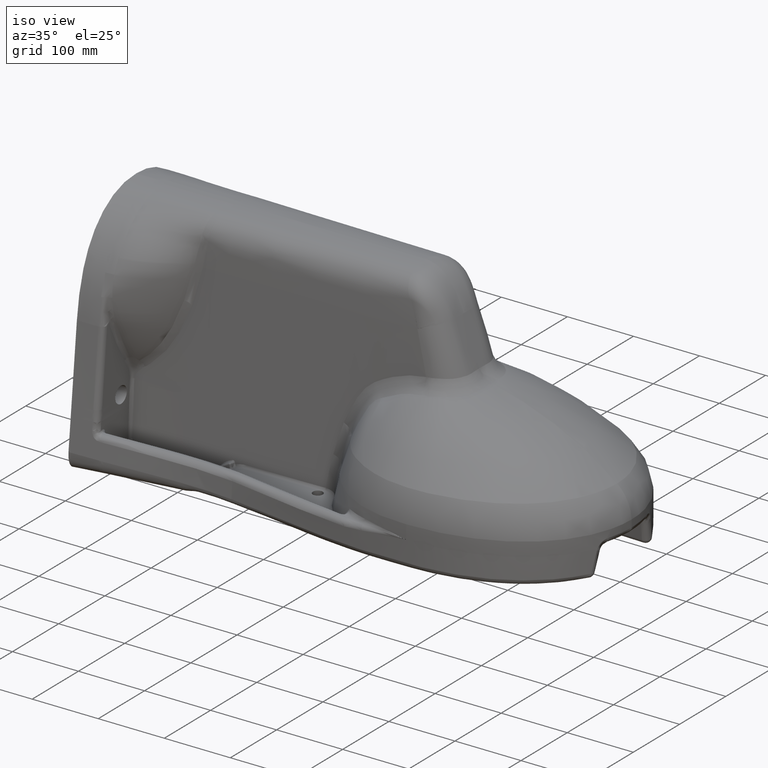
[diagram: clean part render]
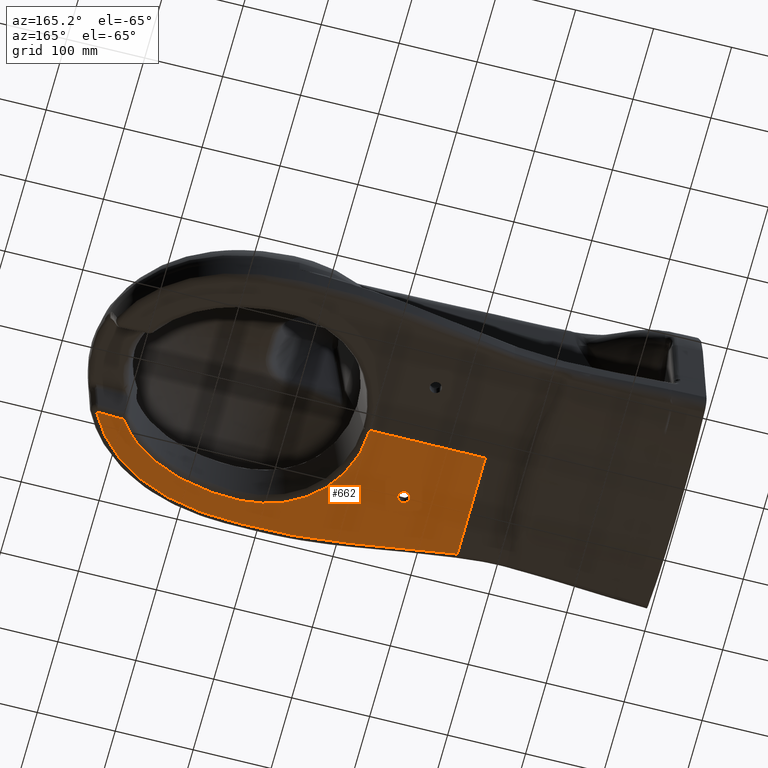
[diagram: tour spotlight — one face highlighted and labeled with its STEP entity id]
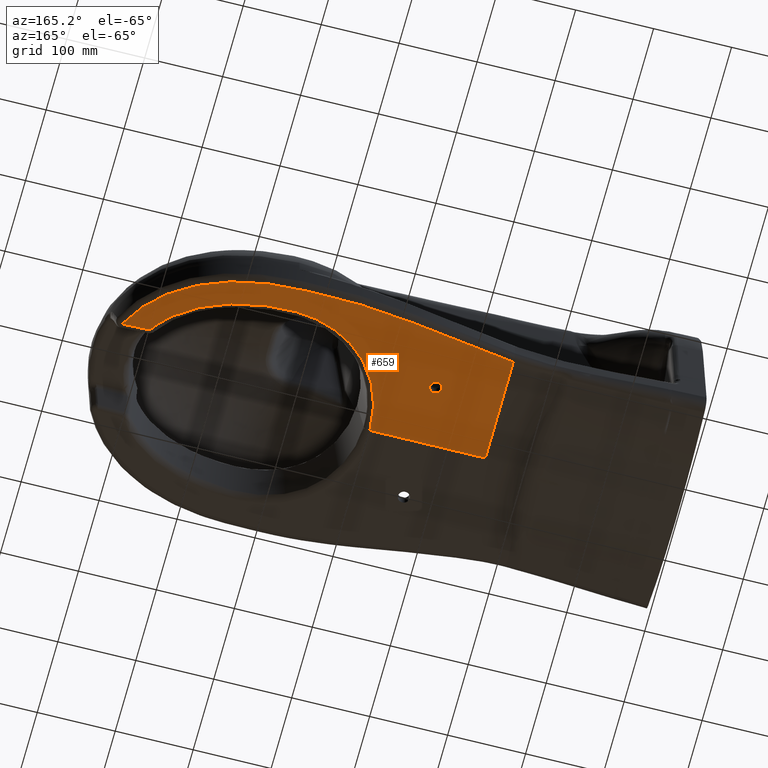
[diagram: tour spotlight — one face highlighted and labeled with its STEP entity id]
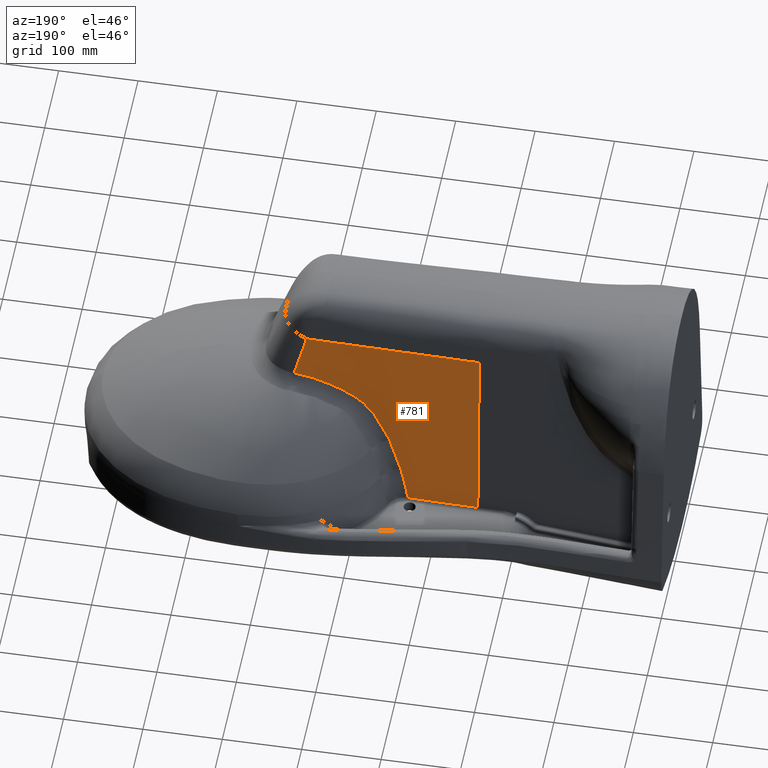
[diagram: tour spotlight — one face highlighted and labeled with its STEP entity id]
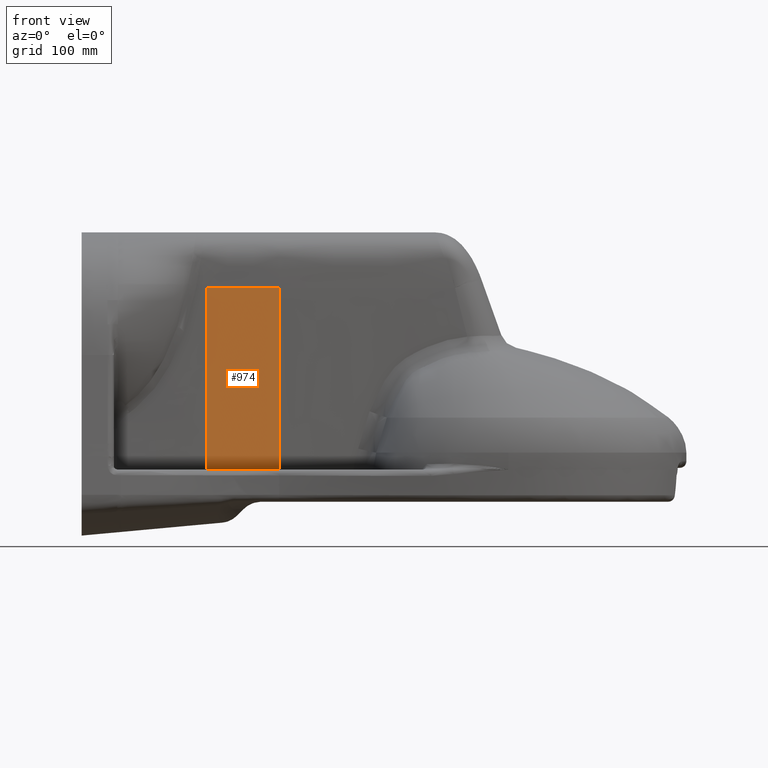
[diagram: tour spotlight — one face highlighted and labeled with its STEP entity id]
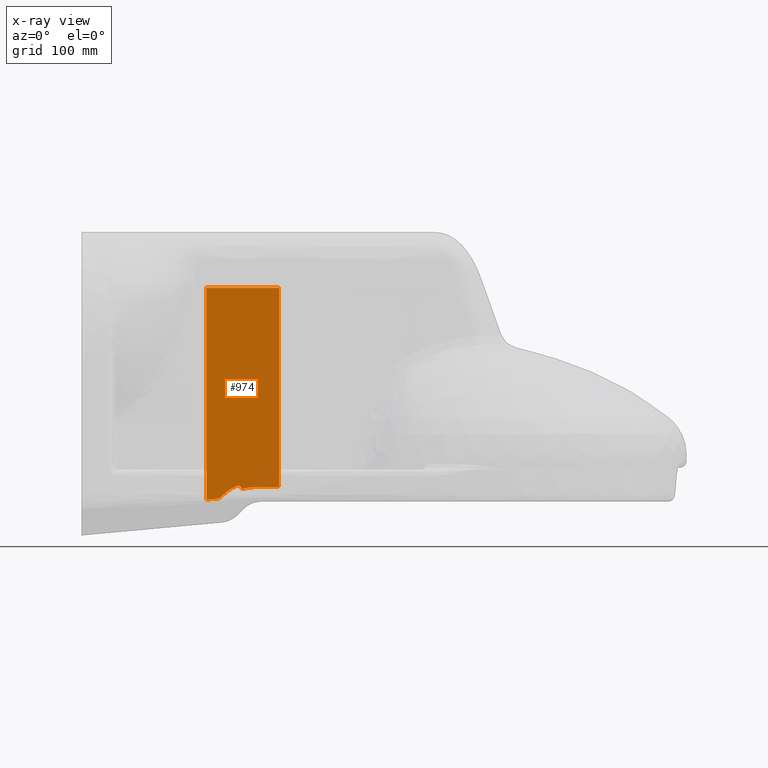
[diagram: x-ray of the same camera — body ghosted, this tour face saturated]
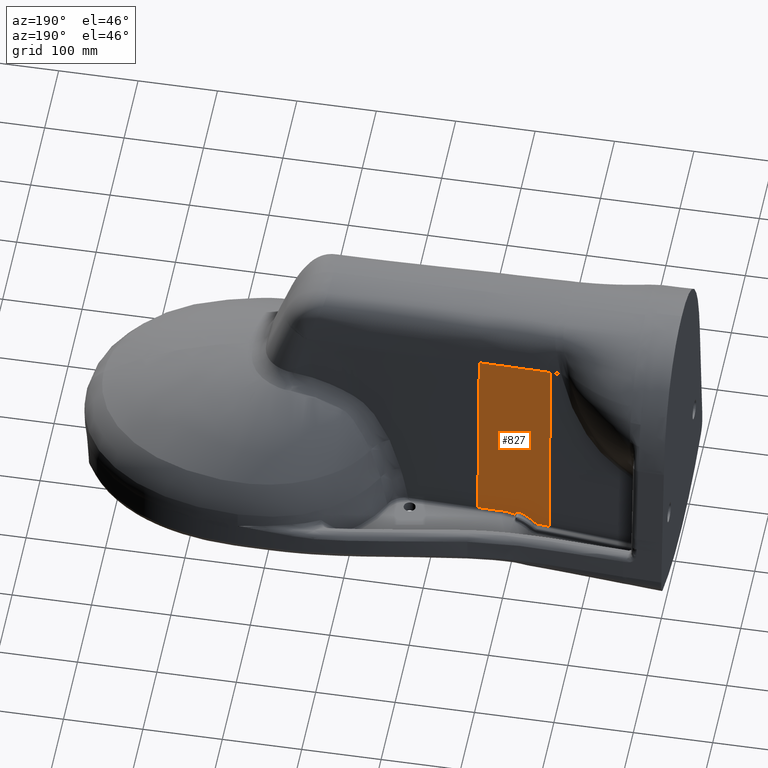
[diagram: tour spotlight — one face highlighted and labeled with its STEP entity id]
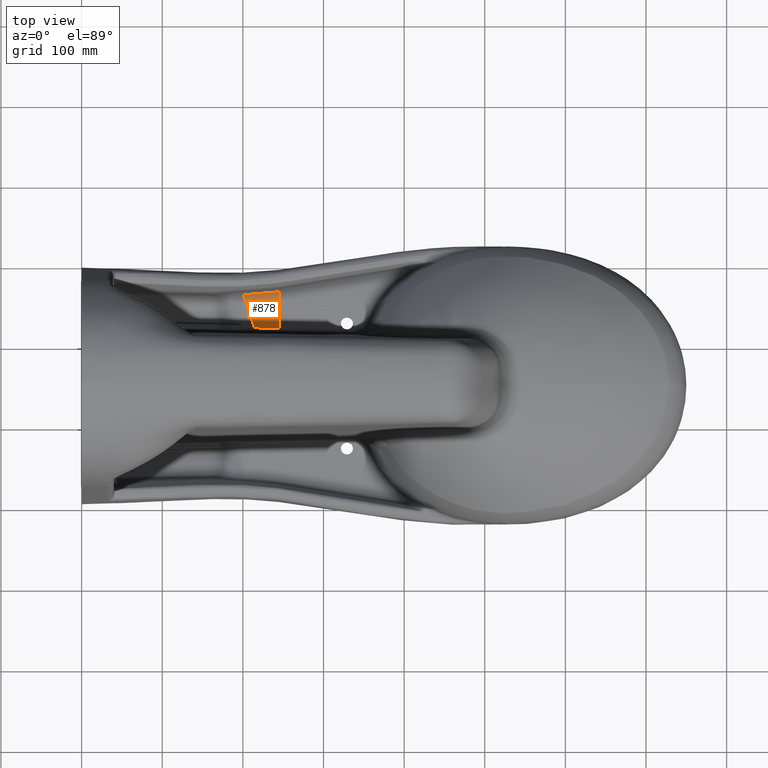
[diagram: tour spotlight — one face highlighted and labeled with its STEP entity id]
A machine part: a face-by-face anatomy tour. The part has 423 B-rep faces; the first image is the clean iso view, then the 6 largest visible faces are spotlighted one at a time (largest first), each with its STEP entity span.

Face 1 — auxiliary view, entity #662. In plain terms, the highlighted planar face has unit normal (0, 0, -1).
Definition (entity closure, byte-faithful):
#67=CIRCLE('',#6534,7.5);
#163=LINE('',#9506,#332);
#166=LINE('',#9728,#335);
#167=LINE('',#9761,#336);
#332=VECTOR('',#6720,1.);
#335=VECTOR('',#6733,1.);
#336=VECTOR('',#6734,1.);
#579=FACE_BOUND('',#1668,.T.);
#580=FACE_BOUND('',#1669,.T.);
#592=PLANE('',#6535);
#662=ADVANCED_FACE('',(#579,#580),#592,.T.);
#1668=EDGE_LOOP('',(#2313,#2314,#2315,#2316,#2317,#2318));
#1669=EDGE_LOOP('',(#2319));
#2313=ORIENTED_EDGE('',*,*,#4908,.T.);
#2314=ORIENTED_EDGE('',*,*,#4909,.T.);
#2315=ORIENTED_EDGE('',*,*,#4910,.T.);
#2316=ORIENTED_EDGE('',*,*,#4911,.T.);
#2317=ORIENTED_EDGE('',*,*,#4912,.F.);
#2318=ORIENTED_EDGE('',*,*,#4891,.F.);
#2319=ORIENTED_EDGE('',*,*,#4913,.F.);
#4246=VERTEX_POINT('',#9504);
#4248=VERTEX_POINT('',#9507);
#4262=VERTEX_POINT('',#9727);
#4263=VERTEX_POINT('',#9729);
#4264=VERTEX_POINT('',#9760);
#4265=VERTEX_POINT('',#9762);
#4266=VERTEX_POINT('',#9768);
#4891=EDGE_CURVE('',#4246,#4248,#163,.T.);
#4908=EDGE_CURVE('',#4246,#4262,#5911,.T.);
#4909=EDGE_CURVE('',#4262,#4263,#166,.T.);
#4910=EDGE_CURVE('',#4263,#4264,#5912,.T.);
#4911=EDGE_CURVE('',#4264,#4265,#167,.T.);
#4912=EDGE_CURVE('',#4248,#4265,#5913,.T.);
#4913=EDGE_CURVE('',#4266,#4266,#67,.T.);
#5911=B_SPLINE_CURVE_WITH_KNOTS('',3,(#9693,#9694,#9695,#9696,#9697,#9698,
#9699,#9700,#9701,#9702,#9703,#9704,#9705,#9706,#9707,#9708,#9709,#9710,
#9711,#9712,#9713,#9714,#9715,#9716,#9717,#9718,#9719,#9720,#9721,#9722,
#9723,#9724,#9725,#9726),.UNSPECIFIED.,.F.,.F.,(4,2,2,2,2,2,2,2,2,2,2,2,
2,2,2,2,4),(0.,0.0625000000000002,0.125,0.187500000000001,0.218750000000001,
0.250000000000001,0.312500000000001,0.375,0.4375,0.5,0.5625,0.625,0.749999999999999,
0.812499999999999,0.875,0.9375,1.),.UNSPECIFIED.);
#5912=B_SPLINE_CURVE_WITH_KNOTS('',3,(#9730,#9731,#9732,#9733,#9734,#9735,
#9736,#9737,#9738,#9739,#9740,#9741,#9742,#9743,#9744,#9745,#9746,#9747,
#9748,#9749,#9750,#9751,#9752,#9753,#9754,#9755,#9756,#9757,#9758,#9759),
 .UNSPECIFIED.,.F.,.F.,(4,2,2,2,2,2,2,2,2,2,2,2,2,2,4),(0.,0.0312500000000004,
0.0625000000000008,0.125000000000001,0.187500000000001,0.250000000000002,
0.312500000000002,0.375000000000003,0.437500000000003,0.500000000000003,
0.562500000000003,0.625000000000003,0.750000000000002,0.875000000000001,
1.),.UNSPECIFIED.);
#5913=B_SPLINE_CURVE_WITH_KNOTS('',3,(#9763,#9764,#9765,#9766),
 .UNSPECIFIED.,.F.,.F.,(4,4),(0.,1.),.UNSPECIFIED.);
#6534=AXIS2_PLACEMENT_3D('',#9767,#6735,#6736);
#6535=AXIS2_PLACEMENT_3D('',#9769,#6737,#6738);
#6720=DIRECTION('',(-1.,0.,0.));
#6733=DIRECTION('',(0.999390827019096,0.0348994967024978,0.));
#6734=DIRECTION('',(0.,1.,0.));
#6735=DIRECTION('',(0.,0.,-1.));
#6736=DIRECTION('',(-1.,0.,0.));
#6737=DIRECTION('',(0.,0.,-1.));
#6738=DIRECTION('',(0.902094349400397,-0.431538856628084,0.));
#9504=CARTESIAN_POINT('',(393.168769220505,153.525,4.62043004322538));
#9506=CARTESIAN_POINT('',(432.205403783864,153.525,4.62043004322538));
#9507=CARTESIAN_POINT('',(244.999999956619,153.525,4.62043004322538));
#9693=CARTESIAN_POINT('',(393.168769220505,153.525,4.62043004322538));
#9694=CARTESIAN_POINT('',(393.141674399756,145.158872328778,4.62043004322538));
#9695=CARTESIAN_POINT('',(393.891640436383,136.874360541106,4.62043004322538));
#9696=CARTESIAN_POINT('',(396.757195757956,120.448770452277,4.62043004322538));
#9697=CARTESIAN_POINT('',(398.913607500004,112.377920010332,4.62043004322537));
#9698=CARTESIAN_POINT('',(404.593996570966,96.9558310263636,4.62043004322537));
#9699=CARTESIAN_POINT('',(408.11900888319,89.5371702279292,4.62043004322537));
#9700=CARTESIAN_POINT('',(414.493691856366,78.8733450963706,4.62043004322537));
#9701=CARTESIAN_POINT('',(416.817707698676,75.3758543458805,4.62043004322538));
#9702=CARTESIAN_POINT('',(421.762859919537,68.6771816914201,4.62043004322538));
#9703=CARTESIAN_POINT('',(424.381589636222,65.4735445220845,4.62043004322537));
#9704=CARTESIAN_POINT('',(432.670237289376,56.2937468356289,4.62043004322538));
#9705=CARTESIAN_POINT('',(438.772211087563,50.7482987506466,4.62043004322538));
#9706=CARTESIAN_POINT('',(452.206047993049,40.8834676859732,4.62043004322538));
#9707=CARTESIAN_POINT('',(459.423989423797,36.6417081177935,4.62043004322538));
#9708=CARTESIAN_POINT('',(474.400935938413,29.625024785222,4.62043004322538));
#9709=CARTESIAN_POINT('',(482.269057321132,26.806063196057,4.62043004322537));
#9710=CARTESIAN_POINT('',(498.41603283708,22.5745369651442,4.62043004322537));
#9711=CARTESIAN_POINT('',(506.617215528621,21.1642573111156,4.62043004322538));
#9712=CARTESIAN_POINT('',(523.245423609103,19.5914239969404,4.62043004322538));
#9713=CARTESIAN_POINT('',(531.571193875783,19.4662024879853,4.62043004322538));
#9714=CARTESIAN_POINT('',(548.082368060583,20.0896010660037,4.62043004322538));
#9715=CARTESIAN_POINT('',(556.303526184573,20.7922904890388,4.62043004322538));
#9716=CARTESIAN_POINT('',(580.875483480611,23.9396659299412,4.62043004322538));
#9717=CARTESIAN_POINT('',(597.280544212483,27.5425130000975,4.62043004322538));
#9718=CARTESIAN_POINT('',(620.685269945092,35.6198879922541,4.62043004322538));
#9719=CARTESIAN_POINT('',(628.307612143689,38.7627953505825,4.62043004322537));
#9720=CARTESIAN_POINT('',(643.131125065075,46.107099483036,4.62043004322537));
#9721=CARTESIAN_POINT('',(650.388554727495,50.352123292316,4.62043004322537));
#9722=CARTESIAN_POINT('',(663.992121279966,59.8626376444096,4.62043004322537));
#9723=CARTESIAN_POINT('',(670.364219820269,65.1241200026246,4.62043004322538));
#9724=CARTESIAN_POINT('',(682.130528468102,76.7991660210508,4.62043004322538));
#9725=CARTESIAN_POINT('',(687.545063965008,83.2636167670648,4.62043004322538));
#9726=CARTESIAN_POINT('',(692.231130861477,90.1816847559498,4.62043004322538));
#9727=CARTESIAN_POINT('',(692.231130861476,90.1816847559497,4.62043004322537));
#9728=CARTESIAN_POINT('',(709.914706192819,90.7992088138855,4.62043004322538));
#9729=CARTESIAN_POINT('',(727.598281524158,91.4167328718207,4.62043004322538));
#9730=CARTESIAN_POINT('',(727.598281524159,91.4167328718207,4.62043004322538));
#9731=CARTESIAN_POINT('',(725.176394440601,86.4543344083008,4.62043004322538));
#9732=CARTESIAN_POINT('',(722.466221974084,81.6211962851096,4.62043004322538));
#9733=CARTESIAN_POINT('',(716.603313558643,72.3863437974884,4.62043004322538));
#9734=CARTESIAN_POINT('',(713.442351216346,67.9608940136621,4.62043004322538));
#9735=CARTESIAN_POINT('',(703.315704336012,55.2230298795863,4.62043004322537));
#9736=CARTESIAN_POINT('',(695.71014727448,47.4458491154069,4.62043004322538));
#9737=CARTESIAN_POINT('',(678.872761872992,33.251813239908,4.62043004322538));
#9738=CARTESIAN_POINT('',(669.853867007182,27.0167208748384,4.62043004322538));
#9739=CARTESIAN_POINT('',(650.97660003643,16.1313114172842,4.62043004322538));
#9740=CARTESIAN_POINT('',(641.036110999232,11.4377679129119,4.62043004322538));
#9741=CARTESIAN_POINT('',(620.567880592337,3.51921281704087,4.62043004322538));
#9742=CARTESIAN_POINT('',(610.204646319446,0.352398417084152,4.62043004322538));
#9743=CARTESIAN_POINT('',(589.275107914338,-4.7348972062263,4.62043004322538));
#9744=CARTESIAN_POINT('',(578.707194708776,-6.64550280598542,4.62043004322538));
#9745=CARTESIAN_POINT('',(557.386870236494,-9.33436450074564,4.62043004322538));
#9746=CARTESIAN_POINT('',(546.63337850555,-10.1059892895791,4.62043004322538));
#9747=CARTESIAN_POINT('',(525.006525942983,-10.9135470342919,4.62043004322538));
#9748=CARTESIAN_POINT('',(514.13081175564,-10.9713012822412,4.62043004322538));
#9749=CARTESIAN_POINT('',(492.403220999073,-11.0090517586031,4.62043004322538));
#9750=CARTESIAN_POINT('',(481.535951246549,-11.0677477925103,4.62043004322538));
#9751=CARTESIAN_POINT('',(459.857264703707,-10.5449931044006,4.62043004322538));
#9752=CARTESIAN_POINT('',(449.046010624572,-9.96167750303909,4.62043004322538));
#9753=CARTESIAN_POINT('',(416.675904499457,-7.48214981068726,4.62043004322538));
#9754=CARTESIAN_POINT('',(395.184258008431,-4.8156756550777,4.62043004322538));
#9755=CARTESIAN_POINT('',(352.27997179405,1.42279179108722,4.62043004322538));
#9756=CARTESIAN_POINT('',(330.867997405685,4.98067156254959,4.62043004322538));
#9757=CARTESIAN_POINT('',(288.006743795732,11.7693164819102,4.62043004322538));
#9758=CARTESIAN_POINT('',(266.551546799806,14.996523587039,4.62043004322538));
#9759=CARTESIAN_POINT('',(244.999999953417,17.5684024752182,4.62043004322538));
#9760=CARTESIAN_POINT('',(244.999999954057,17.5684024752181,4.62043004322538));
#9761=CARTESIAN_POINT('',(244.99999995726,142.116502616468,4.62043004322538));
#9762=CARTESIAN_POINT('',(244.99999995726,148.525,4.62043004322538));
#9763=CARTESIAN_POINT('',(244.99999995726,153.525,4.62043004322538));
#9764=CARTESIAN_POINT('',(244.99999995726,151.858333333337,4.62043004322538));
#9765=CARTESIAN_POINT('',(244.99999995726,150.191666666675,4.62043004322538));
#9766=CARTESIAN_POINT('',(244.99999995726,148.525,4.62043004322538));
#9767=CARTESIAN_POINT('',(329.06134140244,76.0170382258993,4.62043004322538));
#9768=CARTESIAN_POINT('',(321.56134140244,76.0170382258993,4.62043004322538));
#9769=CARTESIAN_POINT('',(245.715691936719,520.090153906143,4.62043004322538));

Face 2 — auxiliary view, entity #659. In plain terms, the highlighted planar face has unit normal (0, 0, 1).
Definition (entity closure, byte-faithful):
#64=CIRCLE('',#6529,7.5);
#163=LINE('',#9506,#332);
#164=LINE('',#9513,#333);
#165=LINE('',#9546,#334);
#332=VECTOR('',#6720,1.);
#333=VECTOR('',#6721,1.);
#334=VECTOR('',#6722,1.);
#577=FACE_BOUND('',#1664,.T.);
#578=FACE_BOUND('',#1665,.T.);
#590=PLANE('',#6530);
#659=ADVANCED_FACE('',(#577,#578),#590,.F.);
#1664=EDGE_LOOP('',(#2293,#2294,#2295,#2296,#2297,#2298));
#1665=EDGE_LOOP('',(#2299));
#2293=ORIENTED_EDGE('',*,*,#4890,.F.);
#2294=ORIENTED_EDGE('',*,*,#4891,.T.);
#2295=ORIENTED_EDGE('',*,*,#4892,.T.);
#2296=ORIENTED_EDGE('',*,*,#4893,.F.);
#2297=ORIENTED_EDGE('',*,*,#4894,.F.);
#2298=ORIENTED_EDGE('',*,*,#4895,.F.);
#2299=ORIENTED_EDGE('',*,*,#4896,.F.);
#4246=VERTEX_POINT('',#9504);
#4247=VERTEX_POINT('',#9505);
#4248=VERTEX_POINT('',#9507);
#4249=VERTEX_POINT('',#9512);
#4250=VERTEX_POINT('',#9514);
#4251=VERTEX_POINT('',#9545);
#4252=VERTEX_POINT('',#9548);
#4890=EDGE_CURVE('',#4246,#4247,#5899,.T.);
#4891=EDGE_CURVE('',#4246,#4248,#163,.T.);
#4892=EDGE_CURVE('',#4248,#4249,#5900,.T.);
#4893=EDGE_CURVE('',#4250,#4249,#164,.T.);
#4894=EDGE_CURVE('',#4251,#4250,#5901,.T.);
#4895=EDGE_CURVE('',#4247,#4251,#165,.T.);
#4896=EDGE_CURVE('',#4252,#4252,#64,.T.);
#5899=B_SPLINE_CURVE_WITH_KNOTS('',3,(#9470,#9471,#9472,#9473,#9474,#9475,
#9476,#9477,#9478,#9479,#9480,#9481,#9482,#9483,#9484,#9485,#9486,#9487,
#9488,#9489,#9490,#9491,#9492,#9493,#9494,#9495,#9496,#9497,#9498,#9499,
#9500,#9501,#9502,#9503),.UNSPECIFIED.,.F.,.F.,(4,2,2,2,2,2,2,2,2,2,2,2,
2,2,2,2,4),(0.,0.0625000000000004,0.125000000000001,0.187500000000001,0.218750000000001,
0.250000000000001,0.312500000000001,0.375000000000001,0.437500000000001,
0.500000000000001,0.562500000000001,0.625000000000001,0.750000000000001,
0.812500000000001,0.875,0.9375,1.),.UNSPECIFIED.);
#5900=B_SPLINE_CURVE_WITH_KNOTS('',3,(#9508,#9509,#9510,#9511),
 .UNSPECIFIED.,.F.,.F.,(4,4),(0.,1.),.UNSPECIFIED.);
#5901=B_SPLINE_CURVE_WITH_KNOTS('',3,(#9515,#9516,#9517,#9518,#9519,#9520,
#9521,#9522,#9523,#9524,#9525,#9526,#9527,#9528,#9529,#9530,#9531,#9532,
#9533,#9534,#9535,#9536,#9537,#9538,#9539,#9540,#9541,#9542,#9543,#9544),
 .UNSPECIFIED.,.F.,.F.,(4,2,2,2,2,2,2,2,2,2,2,2,2,2,4),(0.,0.0312500000000003,
0.0625000000000007,0.125000000000001,0.187500000000001,0.250000000000002,
0.312500000000002,0.375000000000002,0.437500000000002,0.500000000000003,
0.562500000000002,0.625000000000002,0.750000000000001,0.875000000000001,
1.),.UNSPECIFIED.);
#6529=AXIS2_PLACEMENT_3D('',#9547,#6723,#6724);
#6530=AXIS2_PLACEMENT_3D('',#9549,#6725,#6726);
#6720=DIRECTION('',(-1.,0.,0.));
#6721=DIRECTION('',(0.,-1.,0.));
#6722=DIRECTION('',(0.999390827019096,-0.0348994967024952,0.));
#6723=DIRECTION('',(0.,0.,-1.));
#6724=DIRECTION('',(-1.,0.,0.));
#6725=DIRECTION('',(0.,0.,1.));
#6726=DIRECTION('',(0.902094349400397,0.431538856628084,0.));
#9470=CARTESIAN_POINT('',(393.168769220505,153.525,4.62043004322538));
#9471=CARTESIAN_POINT('',(393.141674399755,161.891127671222,4.62043004322538));
#9472=CARTESIAN_POINT('',(393.891640436383,170.175639458894,4.62043004322537));
#9473=CARTESIAN_POINT('',(396.757195757957,186.601229547723,4.62043004322537));
#9474=CARTESIAN_POINT('',(398.913607500003,194.672079989668,4.62043004322537));
#9475=CARTESIAN_POINT('',(404.593996570966,210.094168973636,4.62043004322537));
#9476=CARTESIAN_POINT('',(408.11900888319,217.512829772071,4.62043004322538));
#9477=CARTESIAN_POINT('',(414.493691856366,228.176654903629,4.62043004322538));
#9478=CARTESIAN_POINT('',(416.817707698676,231.674145654119,4.62043004322538));
#9479=CARTESIAN_POINT('',(421.762859919536,238.37281830858,4.62043004322538));
#9480=CARTESIAN_POINT('',(424.381589636222,241.576455477916,4.62043004322538));
#9481=CARTESIAN_POINT('',(432.670237289376,250.756253164371,4.62043004322538));
#9482=CARTESIAN_POINT('',(438.772211087563,256.301701249353,4.62043004322537));
#9483=CARTESIAN_POINT('',(452.206047993049,266.166532314027,4.62043004322537));
#9484=CARTESIAN_POINT('',(459.423989423796,270.408291882206,4.62043004322538));
#9485=CARTESIAN_POINT('',(474.400935938413,277.424975214778,4.62043004322538));
#9486=CARTESIAN_POINT('',(482.269057321132,280.243936803943,4.62043004322538));
#9487=CARTESIAN_POINT('',(498.416032837079,284.475463034856,4.62043004322538));
#9488=CARTESIAN_POINT('',(506.617215528621,285.885742688885,4.62043004322538));
#9489=CARTESIAN_POINT('',(523.245423609103,287.45857600306,4.62043004322538));
#9490=CARTESIAN_POINT('',(531.571193875782,287.583797512015,4.62043004322538));
#9491=CARTESIAN_POINT('',(548.082368060582,286.960398933996,4.62043004322538));
#9492=CARTESIAN_POINT('',(556.303526184573,286.257709510961,4.62043004322537));
#9493=CARTESIAN_POINT('',(580.87548348061,283.110334070059,4.62043004322537));
#9494=CARTESIAN_POINT('',(597.280544212482,279.507486999903,4.62043004322537));
#9495=CARTESIAN_POINT('',(620.685269945091,271.430112007746,4.62043004322537));
#9496=CARTESIAN_POINT('',(628.307612143689,268.287204649418,4.62043004322539));
#9497=CARTESIAN_POINT('',(643.131125065075,260.942900516965,4.62043004322539));
#9498=CARTESIAN_POINT('',(650.388554727495,256.697876707685,4.62043004322538));
#9499=CARTESIAN_POINT('',(663.992121279966,247.187362355591,4.62043004322538));
#9500=CARTESIAN_POINT('',(670.364219820269,241.925879997376,4.62043004322539));
#9501=CARTESIAN_POINT('',(682.130528468101,230.25083397895,4.62043004322539));
#9502=CARTESIAN_POINT('',(687.545063965007,223.786383232936,4.62043004322538));
#9503=CARTESIAN_POINT('',(692.231130861476,216.868315244051,4.62043004322538));
#9504=CARTESIAN_POINT('',(393.168769220505,153.525,4.62043004322538));
#9505=CARTESIAN_POINT('',(692.231130861476,216.86831524405,4.62043004322537));
#9506=CARTESIAN_POINT('',(432.205403783864,153.525,4.62043004322538));
#9507=CARTESIAN_POINT('',(244.999999956619,153.525,4.62043004322538));
#9508=CARTESIAN_POINT('',(244.99999995726,153.525,4.62043004322538));
#9509=CARTESIAN_POINT('',(244.999999957259,155.191666666667,4.62043004322538));
#9510=CARTESIAN_POINT('',(244.999999957259,156.858333333333,4.62043004322538));
#9511=CARTESIAN_POINT('',(244.999999957259,158.525,4.62043004322538));
#9512=CARTESIAN_POINT('',(244.99999995726,158.525,4.62043004322538));
#9513=CARTESIAN_POINT('',(244.99999995726,164.933497383532,4.62043004322538));
#9514=CARTESIAN_POINT('',(244.999999954057,289.481597524782,4.62043004322538));
#9515=CARTESIAN_POINT('',(727.598281524158,215.633267128179,4.62043004322538));
#9516=CARTESIAN_POINT('',(725.176394440601,220.5956655917,4.62043004322538));
#9517=CARTESIAN_POINT('',(722.466221974084,225.428803714891,4.62043004322538));
#9518=CARTESIAN_POINT('',(716.603313558643,234.663656202512,4.62043004322538));
#9519=CARTESIAN_POINT('',(713.442351216346,239.089105986338,4.62043004322538));
#9520=CARTESIAN_POINT('',(703.315704336012,251.826970120414,4.62043004322538));
#9521=CARTESIAN_POINT('',(695.710147274479,259.604150884593,4.62043004322538));
#9522=CARTESIAN_POINT('',(678.872761872992,273.798186760092,4.62043004322538));
#9523=CARTESIAN_POINT('',(669.853867007182,280.033279125162,4.62043004322538));
#9524=CARTESIAN_POINT('',(650.97660003643,290.918688582716,4.62043004322538));
#9525=CARTESIAN_POINT('',(641.036110999231,295.612232087088,4.62043004322538));
#9526=CARTESIAN_POINT('',(620.567880592337,303.53078718296,4.62043004322538));
#9527=CARTESIAN_POINT('',(610.204646319446,306.697601582916,4.62043004322538));
#9528=CARTESIAN_POINT('',(589.275107914337,311.784897206227,4.62043004322538));
#9529=CARTESIAN_POINT('',(578.707194708775,313.695502805986,4.62043004322538));
#9530=CARTESIAN_POINT('',(557.386870236494,316.384364500746,4.62043004322538));
#9531=CARTESIAN_POINT('',(546.63337850555,317.155989289579,4.62043004322538));
#9532=CARTESIAN_POINT('',(525.006525942982,317.963547034292,4.62043004322538));
#9533=CARTESIAN_POINT('',(514.13081175564,318.021301282241,4.62043004322538));
#9534=CARTESIAN_POINT('',(492.403220999072,318.059051758603,4.62043004322537));
#9535=CARTESIAN_POINT('',(481.535951246549,318.117747792511,4.62043004322538));
#9536=CARTESIAN_POINT('',(459.857264703707,317.5949931044,4.62043004322538));
#9537=CARTESIAN_POINT('',(449.046010624572,317.011677503038,4.62043004322538));
#9538=CARTESIAN_POINT('',(416.675904499456,314.532149810689,4.62043004322538));
#9539=CARTESIAN_POINT('',(395.184258008431,311.865675655078,4.62043004322538));
#9540=CARTESIAN_POINT('',(352.27997179405,305.627208208913,4.62043004322538));
#9541=CARTESIAN_POINT('',(330.867997405684,302.069328437451,4.62043004322538));
#9542=CARTESIAN_POINT('',(288.006743795732,295.28068351809,4.62043004322538));
#9543=CARTESIAN_POINT('',(266.551546799806,292.053476412961,4.62043004322538));
#9544=CARTESIAN_POINT('',(244.999999953417,289.481597524782,4.62043004322538));
#9545=CARTESIAN_POINT('',(727.598281524158,215.633267128179,4.62043004322538));
#9546=CARTESIAN_POINT('',(709.914706192819,216.250791186115,4.62043004322538));
#9547=CARTESIAN_POINT('',(329.06134140244,231.017038225899,4.62043004322538));
#9548=CARTESIAN_POINT('',(321.56134140244,231.017038225899,4.62043004322538));
#9549=CARTESIAN_POINT('',(245.715691936719,-213.040153906143,4.62043004322538));

Face 3 — auxiliary view, entity #781. In plain terms, the highlighted face is a freeform B-spline surface patch.
Definition (entity closure, byte-faithful):
#247=(
BOUNDED_CURVE()
B_SPLINE_CURVE(3,(#22871,#22872,#22873,#22874,#22875,#22876,#22877,#22878,
#22879,#22880,#22881,#22882,#22883,#22884),.UNSPECIFIED.,.F.,.F.)
B_SPLINE_CURVE_WITH_KNOTS((4,2,2,2,2,2,4),(0.,0.503019412395982,0.754529118593973,
0.880283971692969,0.943161398242466,0.974600111517215,1.),.UNSPECIFIED.)
CURVE()
GEOMETRIC_REPRESENTATION_ITEM()
RATIONAL_B_SPLINE_CURVE((1.,1.,1.,1.,1.,1.,1.,1.,1.,1.,1.,1.,1.,1.))
REPRESENTATION_ITEM('')
);
#249=(
BOUNDED_CURVE()
B_SPLINE_CURVE(3,(#22941,#22942,#22943,#22944),.UNSPECIFIED.,.F.,.F.)
B_SPLINE_CURVE_WITH_KNOTS((4,4),(0.,1.),.UNSPECIFIED.)
CURVE()
GEOMETRIC_REPRESENTATION_ITEM()
RATIONAL_B_SPLINE_CURVE((0.99999999597292,0.99999999604292,0.999999996107037,
0.999999996151538))
REPRESENTATION_ITEM('')
);
#781=ADVANCED_FACE('',(#1363),#1102,.T.);
#1102=B_SPLINE_SURFACE_WITH_KNOTS('',3,3,((#24174,#24175,#24176,#24177),
(#24178,#24179,#24180,#24181),(#24182,#24183,#24184,#24185),(#24186,#24187,
#24188,#24189),(#24190,#24191,#24192,#24193),(#24194,#24195,#24196,#24197),
(#24198,#24199,#24200,#24201),(#24202,#24203,#24204,#24205),(#24206,#24207,
#24208,#24209),(#24210,#24211,#24212,#24213),(#24214,#24215,#24216,#24217),
(#24218,#24219,#24220,#24221),(#24222,#24223,#24224,#24225),(#24226,#24227,
#24228,#24229),(#24230,#24231,#24232,#24233),(#24234,#24235,#24236,#24237),
(#24238,#24239,#24240,#24241),(#24242,#24243,#24244,#24245),(#24246,#24247,
#24248,#24249),(#24250,#24251,#24252,#24253),(#24254,#24255,#24256,#24257),
(#24258,#24259,#24260,#24261),(#24262,#24263,#24264,#24265),(#24266,#24267,
#24268,#24269),(#24270,#24271,#24272,#24273),(#24274,#24275,#24276,#24277),
(#24278,#24279,#24280,#24281),(#24282,#24283,#24284,#24285),(#24286,#24287,
#24288,#24289),(#24290,#24291,#24292,#24293)),.UNSPECIFIED.,.F.,.F.,.F.,
(4,1,1,1,1,1,1,1,1,1,1,1,1,1,1,1,1,1,1,1,1,1,1,1,1,1,1,4),(4,4),(0.,0.125,
0.25,0.28125,0.296875,0.30078125,0.301025390625,0.30126953125,0.3017578125,
0.302734375,0.3046875,0.3125,0.375,0.4375,0.5,0.5625,0.625,0.65625,0.6875,
0.71875,0.75,0.78125,0.8125,0.84375,0.875,0.9375,0.96875,1.),(0.,1.),
 .UNSPECIFIED.);
#1363=FACE_OUTER_BOUND('',#1788,.T.);
#1788=EDGE_LOOP('',(#2853,#2854,#2855,#2856,#2857,#2858,#2859,#2860));
#2853=ORIENTED_EDGE('',*,*,#5206,.F.);
#2854=ORIENTED_EDGE('',*,*,#5207,.F.);
#2855=ORIENTED_EDGE('',*,*,#5197,.T.);
#2856=ORIENTED_EDGE('',*,*,#5185,.F.);
#2857=ORIENTED_EDGE('',*,*,#5190,.F.);
#2858=ORIENTED_EDGE('',*,*,#5193,.F.);
#2859=ORIENTED_EDGE('',*,*,#5195,.F.);
#2860=ORIENTED_EDGE('',*,*,#4882,.F.);
#4240=VERTEX_POINT('',#9371);
#4241=VERTEX_POINT('',#9380);
#4424=VERTEX_POINT('',#22430);
#4426=VERTEX_POINT('',#22436);
#4429=VERTEX_POINT('',#22711);
#4431=VERTEX_POINT('',#22869);
#4433=VERTEX_POINT('',#22965);
#4439=VERTEX_POINT('',#24169);
#4882=EDGE_CURVE('',#4240,#4241,#5893,.T.);
#5185=EDGE_CURVE('',#4424,#4426,#6092,.T.);
#5190=EDGE_CURVE('',#4429,#4424,#6095,.T.);
#5193=EDGE_CURVE('',#4431,#4429,#247,.T.);
#5195=EDGE_CURVE('',#4241,#4431,#249,.T.);
#5197=EDGE_CURVE('',#4433,#4426,#6097,.T.);
#5206=EDGE_CURVE('',#4439,#4240,#6106,.T.);
#5207=EDGE_CURVE('',#4433,#4439,#6107,.T.);
#5893=B_SPLINE_CURVE_WITH_KNOTS('',3,(#9372,#9373,#9374,#9375,#9376,#9377,
#9378,#9379),.UNSPECIFIED.,.F.,.F.,(4,2,2,4),(0.,0.0908233049619154,0.454116524809581,
1.),.UNSPECIFIED.);
#6092=B_SPLINE_CURVE_WITH_KNOTS('',3,(#22432,#22433,#22434,#22435),
 .UNSPECIFIED.,.F.,.F.,(4,4),(0.,1.),.UNSPECIFIED.);
#6095=B_SPLINE_CURVE_WITH_KNOTS('',3,(#22713,#22714,#22715,#22716,#22717,
#22718,#22719,#22720,#22721,#22722,#22723,#22724,#22725,#22726,#22727,#22728,
#22729,#22730,#22731,#22732,#22733,#22734),.UNSPECIFIED.,.F.,.F.,(4,2,2,
2,2,2,2,2,2,2,4),(0.,0.125,0.25,0.375,0.4375,0.5,0.562499999999999,0.624999999999999,
0.749999999999999,0.875,1.),.UNSPECIFIED.);
#6097=B_SPLINE_CURVE_WITH_KNOTS('',3,(#22961,#22962,#22963,#22964),
 .UNSPECIFIED.,.F.,.F.,(4,4),(0.,1.),.UNSPECIFIED.);
#6106=B_SPLINE_CURVE_WITH_KNOTS('',1,(#24167,#24168),.UNSPECIFIED.,.F.,
 .F.,(2,2),(0.,1.),.UNSPECIFIED.);
#6107=B_SPLINE_CURVE_WITH_KNOTS('',3,(#24170,#24171,#24172,#24173),
 .UNSPECIFIED.,.F.,.F.,(4,4),(0.,1.),.UNSPECIFIED.);
#9371=CARTESIAN_POINT('',(244.999999952527,221.111633169205,22.4460582040676));
#9372=CARTESIAN_POINT('',(244.999999952536,221.111632969785,22.4460627287263));
#9373=CARTESIAN_POINT('',(247.666204897802,221.062011460294,22.4461448807554));
#9374=CARTESIAN_POINT('',(250.332409843157,221.012389955651,22.4462270331735));
#9375=CARTESIAN_POINT('',(263.663434569915,220.76428243128,22.4466377827922));
#9376=CARTESIAN_POINT('',(274.328254350333,220.565796358649,22.4469663417838));
#9377=CARTESIAN_POINT('',(301.018005415611,220.069065657748,22.4477880442263));
#9378=CARTESIAN_POINT('',(317.042936731521,219.770822697058,22.4482807442643));
#9379=CARTESIAN_POINT('',(333.067868019941,219.472578264717,22.4487766841238));
#9380=CARTESIAN_POINT('',(333.067868019941,219.472578264717,22.4487766841238));
#22430=CARTESIAN_POINT('',(478.24803040079,209.907105420484,209.382315858307));
#22432=CARTESIAN_POINT('',(478.239256009398,209.907199598192,209.380801835751));
#22433=CARTESIAN_POINT('',(478.232598631756,209.905173770421,209.419850937501));
#22434=CARTESIAN_POINT('',(478.225829110476,209.90324091469,209.45884752398));
#22435=CARTESIAN_POINT('',(478.218937718339,209.901400228964,209.497787949483));
#22436=CARTESIAN_POINT('',(478.218936482556,209.901402088473,209.497807738872));
#22711=CARTESIAN_POINT('',(357.169118932752,215.005504069313,116.852163302492));
#22713=CARTESIAN_POINT('',(357.169118700328,215.005494284991,116.85216288396));
#22714=CARTESIAN_POINT('',(359.606905290095,214.679009662559,123.130850094745));
#22715=CARTESIAN_POINT('',(362.266413253988,214.336077656217,129.302421487877));
#22716=CARTESIAN_POINT('',(368.128603663032,213.647356657374,141.486984702212));
#22717=CARTESIAN_POINT('',(371.377190841431,213.311906278637,147.506510864839));
#22718=CARTESIAN_POINT('',(378.432416638611,212.702560527926,159.12479662595));
#22719=CARTESIAN_POINT('',(382.281240791645,212.406815536208,164.754014133682));
#22720=CARTESIAN_POINT('',(389.023564750494,211.980865313756,172.304246093786));
#22721=CARTESIAN_POINT('',(391.414748125139,211.843143285622,174.680621611796));
#22722=CARTESIAN_POINT('',(396.591303687765,211.584066025341,179.0965224106));
#22723=CARTESIAN_POINT('',(399.405630282684,211.464102093726,181.135698134881));
#22724=CARTESIAN_POINT('',(405.222442772546,211.255030956989,184.776163855397));
#22725=CARTESIAN_POINT('',(408.191168260213,211.162680234311,186.45021869751));
#22726=CARTESIAN_POINT('',(414.162835539907,210.989724526025,189.684933708473));
#22727=CARTESIAN_POINT('',(417.17086314338,210.909442815671,191.226031732135));
#22728=CARTESIAN_POINT('',(426.292627650863,210.677910145476,195.62632738589));
#22729=CARTESIAN_POINT('',(432.509583566015,210.535913180062,198.269293968542));
#22730=CARTESIAN_POINT('',(445.271854160745,210.286505997676,202.897800767337));
#22731=CARTESIAN_POINT('',(451.82192965753,210.181916037932,204.835873807574));
#22732=CARTESIAN_POINT('',(464.955869856713,210.01763270219,207.687741642488));
#22733=CARTESIAN_POINT('',(471.577338242329,209.952063748934,208.736853134258));
#22734=CARTESIAN_POINT('',(478.248094375985,209.907150299127,209.381657884904));
#22869=CARTESIAN_POINT('',(342.94422514317,217.23084295016,70.4972082683595));
#22871=CARTESIAN_POINT('',(342.944225143167,217.230842950159,70.4972082683598));
#22872=CARTESIAN_POINT('',(344.936291748293,216.856506874749,78.3860736702656));
#22873=CARTESIAN_POINT('',(347.052221107475,216.479329073757,86.2818270352671));
#22874=CARTESIAN_POINT('',(350.631804002419,215.928763995289,97.9817409127937));
#22875=CARTESIAN_POINT('',(351.866546784487,215.747124122937,101.857117504464));
#22876=CARTESIAN_POINT('',(353.809548371068,215.469577798126,107.619568171315));
#22877=CARTESIAN_POINT('',(354.472373575525,215.376207459276,109.532248879965));
#22878=CARTESIAN_POINT('',(355.4926357169,215.233822349189,112.388249202133));
#22879=CARTESIAN_POINT('',(355.839376626003,215.185915335877,113.338297047233));
#22880=CARTESIAN_POINT('',(356.36999782156,215.113419916476,114.760253849088));
#22881=CARTESIAN_POINT('',(356.548623233337,215.089148970899,115.23372029062));
#22882=CARTESIAN_POINT('',(356.87481045483,215.045082948775,116.088741864023));
#22883=CARTESIAN_POINT('',(357.022037379655,215.025321418253,116.470372117347));
#22884=CARTESIAN_POINT('',(357.169954177879,215.005498135602,116.851837481929));
#22941=CARTESIAN_POINT('',(333.067868022105,219.472578380983,22.4487766891184));
#22942=CARTESIAN_POINT('',(335.700921446001,218.730180633413,38.5894677922432));
#22943=CARTESIAN_POINT('',(338.944643358977,217.983081820092,54.6415740909961));
#22944=CARTESIAN_POINT('',(342.945470214541,217.230832990819,70.4968933751237));
#22961=CARTESIAN_POINT('',(463.023424941687,206.922616741102,269.818257363457));
#22962=CARTESIAN_POINT('',(468.088595455312,207.915545994071,249.711440861625));
#22963=CARTESIAN_POINT('',(473.153765968935,208.90847524704,229.604624359793));
#22964=CARTESIAN_POINT('',(478.21893648256,209.901404500009,209.497807857961));
#22965=CARTESIAN_POINT('',(463.023424941687,206.922616741102,269.818257363457));
#24167=CARTESIAN_POINT('',(244.999999953417,210.316119274654,269.817765123159));
#24168=CARTESIAN_POINT('',(244.999999953417,221.111633368606,22.4460536794085));
#24169=CARTESIAN_POINT('',(244.999999920859,210.316117105358,269.81781102533));
#24170=CARTESIAN_POINT('',(463.023424941687,206.922616741102,269.818257363457));
#24171=CARTESIAN_POINT('',(390.34894994004,208.053783896173,269.818100183672));
#24172=CARTESIAN_POINT('',(317.674474938392,209.184951051245,269.817943003887));
#24173=CARTESIAN_POINT('',(244.999999936744,210.316118206317,269.817785824102));
#24174=CARTESIAN_POINT('',(244.999999895591,210.316115567294,269.81784420523));
#24175=CARTESIAN_POINT('',(244.999999914867,213.970272668885,186.085372817895));
#24176=CARTESIAN_POINT('',(244.999999934142,217.624429770476,102.35290143056));
#24177=CARTESIAN_POINT('',(244.999999953417,221.278586872067,18.6204300432254));
#24178=CARTESIAN_POINT('',(254.084309272512,210.174719782869,269.817861420155));
#24179=CARTESIAN_POINT('',(255.908528610839,213.785564758243,186.085384294512));
#24180=CARTESIAN_POINT('',(257.732747949166,217.396409733617,102.352907168869));
#24181=CARTESIAN_POINT('',(259.556967287493,221.007254708991,18.6204300432254));
#24182=CARTESIAN_POINT('',(272.252928026353,209.89192821402,269.817895850008));
#24183=CARTESIAN_POINT('',(277.725586002784,213.416148936959,186.085407247747));
#24184=CARTESIAN_POINT('',(283.198243979215,216.940369659899,102.352918645486));
#24185=CARTESIAN_POINT('',(288.670901955645,220.464590382838,18.6204300432254));
#24186=CARTESIAN_POINT('',(292.692624124425,209.573787699065,269.817934583591));
#24187=CARTESIAN_POINT('',(302.292608970243,213.000236163125,186.082992139199));
#24188=CARTESIAN_POINT('',(311.89259381606,216.426684627185,102.348049694806));
#24189=CARTESIAN_POINT('',(321.492578661878,219.853133091245,18.6131072504135));
#24190=CARTESIAN_POINT('',(305.183549517691,209.379368495481,269.817958254114));
#24191=CARTESIAN_POINT('',(317.251877474544,212.746822742051,186.087279548688));
#24192=CARTESIAN_POINT('',(329.320205431397,216.114276988621,102.356600843261));
#24193=CARTESIAN_POINT('',(341.38853338825,219.481731235191,18.6259221378343));
#24194=CARTESIAN_POINT('',(308.874050202065,209.321926458058,269.817965247678));
#24195=CARTESIAN_POINT('',(321.721998622349,212.671245195725,186.083165140107));
#24196=CARTESIAN_POINT('',(334.569947042632,216.020563933391,102.348365032535));
#24197=CARTESIAN_POINT('',(347.417895462916,219.369882671057,18.6135649249642));
#24198=CARTESIAN_POINT('',(310.311216333961,209.2995572031,269.817967971134));
#24199=CARTESIAN_POINT('',(323.414983533005,212.642483166003,186.086671026523));
#24200=CARTESIAN_POINT('',(336.51875073205,215.985409128906,102.355374081912));
#24201=CARTESIAN_POINT('',(349.622517931095,219.328335091809,18.6240771373016));
#24202=CARTESIAN_POINT('',(310.630586585493,209.294586257555,269.817968576346));
#24203=CARTESIAN_POINT('',(323.812701615826,212.635786248531,186.085246011001));
#24204=CARTESIAN_POINT('',(336.994816646158,215.976986239508,102.352523445656));
#24205=CARTESIAN_POINT('',(350.176931676491,219.318186230484,18.619800880311));
#24206=CARTESIAN_POINT('',(310.7015577525,209.293481602989,269.817968710837));
#24207=CARTESIAN_POINT('',(323.868364929882,212.633033582473,186.128238012996));
#24208=CARTESIAN_POINT('',(337.035172107264,215.972585561958,102.438507315154));
#24209=CARTESIAN_POINT('',(350.201979284646,219.312137541443,18.7487766173129));
#24210=CARTESIAN_POINT('',(310.825757294763,209.291548457499,269.817968946197));
#24211=CARTESIAN_POINT('',(323.958845107318,212.628895018598,186.190785570135));
#24212=CARTESIAN_POINT('',(337.091932919874,215.966241579699,102.563602194073));
#24213=CARTESIAN_POINT('',(350.225020732429,219.303588140799,18.9364188180101));
#24214=CARTESIAN_POINT('',(311.074156379288,209.287682166518,269.817969416918));
#24215=CARTESIAN_POINT('',(324.146645564674,212.620152531813,186.323709209562));
#24216=CARTESIAN_POINT('',(337.21913475006,215.952622897108,102.829449002205));
#24217=CARTESIAN_POINT('',(350.291623935447,219.285093262403,19.3351887948483));
#24218=CARTESIAN_POINT('',(311.854839216367,209.275530966294,269.817970896326));
#24219=CARTESIAN_POINT('',(324.729300957,212.593163618215,186.733609688141));
#24220=CARTESIAN_POINT('',(337.603762697633,215.910796270135,103.649248479956));
#24221=CARTESIAN_POINT('',(350.478224438266,219.228428922056,20.5648872717704));
#24222=CARTESIAN_POINT('',(317.106705574899,209.193786528424,269.817980848705));
#24223=CARTESIAN_POINT('',(328.67409701546,212.41062252076,189.506109000481));
#24224=CARTESIAN_POINT('',(340.24148845602,215.627458513097,109.194237152258));
#24225=CARTESIAN_POINT('',(351.808879896581,218.844294505434,28.882365304034));
#24226=CARTESIAN_POINT('',(326.758784287878,209.043553507472,269.817999139564));
#24227=CARTESIAN_POINT('',(336.01548237624,212.074350196181,194.572259052344));
#24228=CARTESIAN_POINT('',(345.272180464603,215.10514688489,119.326518965124));
#24229=CARTESIAN_POINT('',(354.528878552966,218.135943573598,44.0807788779037));
#24230=CARTESIAN_POINT('',(340.385248353259,208.831459830835,269.818024961953));
#24231=CARTESIAN_POINT('',(346.689380688855,211.615375305859,201.672700315245));
#24232=CARTESIAN_POINT('',(352.99351302445,214.399290780882,133.527375668537));
#24233=CARTESIAN_POINT('',(359.297645360046,217.183206255905,65.3820510218297));
#24234=CARTESIAN_POINT('',(354.01171241864,208.619366154198,269.818050784343));
#24235=CARTESIAN_POINT('',(357.663474996975,211.106783250323,208.695251655146));
#24236=CARTESIAN_POINT('',(361.315237575311,213.594200346447,147.572452525948));
#24237=CARTESIAN_POINT('',(364.967000153646,216.081617442571,86.4496533967517));
#24238=CARTESIAN_POINT('',(367.638176484021,208.407272477561,269.818076606732));
#24239=CARTESIAN_POINT('',(368.977822165524,210.579921345426,215.617022928019));
#24240=CARTESIAN_POINT('',(370.317467847028,212.752570213291,161.415969249307));
#24241=CARTESIAN_POINT('',(371.657113528532,214.925219081157,107.214915570594));
#24242=CARTESIAN_POINT('',(378.993563205171,208.23052774703,269.81809812539));
#24243=CARTESIAN_POINT('',(378.753759119128,210.194645386292,221.266191186688));
#24244=CARTESIAN_POINT('',(378.513955033085,212.158763025554,172.714284247987));
#24245=CARTESIAN_POINT('',(378.274150947042,214.122880664815,124.162377309285));
#24246=CARTESIAN_POINT('',(388.077872582092,208.089131962605,269.818115340316));
#24247=CARTESIAN_POINT('',(386.84467871509,209.881134110776,225.667761761237));
#24248=CARTESIAN_POINT('',(385.611484848088,211.673136258946,181.517408182158));
#24249=CARTESIAN_POINT('',(384.378290981086,213.465138407116,137.367054603079));
#24250=CARTESIAN_POINT('',(394.891104614783,207.983085124287,269.818128251511));
#24251=CARTESIAN_POINT('',(393.024193621203,209.64917607391,228.915153369808));
#24252=CARTESIAN_POINT('',(391.157282627625,211.315267023534,188.012178488106));
#24253=CARTESIAN_POINT('',(389.290371634046,212.981357973157,147.109203606404));
#24254=CARTESIAN_POINT('',(401.704336647473,207.877038285968,269.818141162706));
#24255=CARTESIAN_POINT('',(399.38038850438,209.421523705964,232.070840379785));
#24256=CARTESIAN_POINT('',(397.056440361287,210.966009125958,194.323539596864));
#24257=CARTESIAN_POINT('',(394.732492218194,212.510494545953,156.576238813944));
#24258=CARTESIAN_POINT('',(408.517568680163,207.77099144765,269.8181540739));
#24259=CARTESIAN_POINT('',(406.124991485039,209.207654724988,234.978138317337));
#24260=CARTESIAN_POINT('',(403.732414289914,210.644318002326,200.138122560774));
#24261=CARTESIAN_POINT('',(401.33983709479,212.080981279665,165.298106804212));
#24262=CARTESIAN_POINT('',(415.330800712854,207.664944609331,269.818166985095));
#24263=CARTESIAN_POINT('',(413.391140792596,209.017026839552,237.430027999213));
#24264=CARTESIAN_POINT('',(411.451480872338,210.369109069773,205.041889013332));
#24265=CARTESIAN_POINT('',(409.511820952079,211.721191299994,172.65375002745));
#24266=CARTESIAN_POINT('',(422.144032745544,207.558897771013,269.818179896289));
#24267=CARTESIAN_POINT('',(421.170940531441,208.862417979797,239.124156792512));
#24268=CARTESIAN_POINT('',(420.197848317338,210.165938188581,208.430133688733));
#24269=CARTESIAN_POINT('',(419.224756103234,211.469458397366,177.736110584956));
#24270=CARTESIAN_POINT('',(428.957264778235,207.452850932694,269.818192807484));
#24271=CARTESIAN_POINT('',(428.981154942454,208.713094628278,240.720512457767));
#24272=CARTESIAN_POINT('',(429.005045106673,209.973338323862,211.62283210805));
#24273=CARTESIAN_POINT('',(429.028935270893,211.233582019446,182.525151758333));
#24274=CARTESIAN_POINT('',(438.041574155156,207.311455148269,269.81821002241));
#24275=CARTESIAN_POINT('',(439.521991106341,208.526439615579,242.576422875047));
#24276=CARTESIAN_POINT('',(441.002408057527,209.741424082889,215.334635727683));
#24277=CARTESIAN_POINT('',(442.482825008713,210.956408550199,188.092848580319));
#24278=CARTESIAN_POINT('',(447.125883532077,207.170059363845,269.818227237337));
#24279=CARTESIAN_POINT('',(450.216706415002,208.361491532735,244.052222597149));
#24280=CARTESIAN_POINT('',(453.307529297927,209.552923701625,218.286217956962));
#24281=CARTESIAN_POINT('',(456.398352180853,210.744355870516,192.520213316775));
#24282=CARTESIAN_POINT('',(456.210192908997,207.02866357942,269.818244452263));
#24283=CARTESIAN_POINT('',(461.064225839425,208.226420029323,244.854015773899));
#24284=CARTESIAN_POINT('',(465.918258769852,209.424176479226,219.889787095535));
#24285=CARTESIAN_POINT('',(470.772291700281,210.621932929129,194.925558417172));
#24286=CARTESIAN_POINT('',(460.752347597458,206.957965687208,269.818253059725));
#24287=CARTESIAN_POINT('',(466.508285084038,208.167071226981,245.095491394064));
#24288=CARTESIAN_POINT('',(472.264222570618,209.376176766755,220.372729728404));
#24289=CARTESIAN_POINT('',(478.020160057198,210.585282306529,195.649968062742));
#24290=CARTESIAN_POINT('',(463.023424941687,206.922616741102,269.818257363457));
#24291=CARTESIAN_POINT('',(469.23354872306,208.139992059563,245.166408232246));
#24292=CARTESIAN_POINT('',(475.443672504432,209.357367378024,220.514559101035));
#24293=CARTESIAN_POINT('',(481.653796285805,210.574742696486,195.862709969824));

Face 4 — front view, entity #974. An x-ray twin of the same camera follows (body ghosted, this face saturated) — the face is partly hidden behind the body. In plain terms, the highlighted planar face has unit normal (-0.0155, 0.9989, -0.0436).
Definition (entity closure, byte-faithful):
#613=PLANE('',#6669);
#974=ADVANCED_FACE('',(#1556),#613,.F.);
#1556=FACE_OUTER_BOUND('',#1981,.T.);
#1981=EDGE_LOOP('',(#3755,#3756,#3757,#3758,#3759,#3760,#3761,#3762,#3763,
#3764,#3765));
#3755=ORIENTED_EDGE('',*,*,#5558,.T.);
#3756=ORIENTED_EDGE('',*,*,#5555,.T.);
#3757=ORIENTED_EDGE('',*,*,#5626,.T.);
#3758=ORIENTED_EDGE('',*,*,#5625,.T.);
#3759=ORIENTED_EDGE('',*,*,#5521,.F.);
#3760=ORIENTED_EDGE('',*,*,#5636,.T.);
#3761=ORIENTED_EDGE('',*,*,#5631,.F.);
#3762=ORIENTED_EDGE('',*,*,#5570,.T.);
#3763=ORIENTED_EDGE('',*,*,#5567,.T.);
#3764=ORIENTED_EDGE('',*,*,#5564,.T.);
#3765=ORIENTED_EDGE('',*,*,#5561,.T.);
#4257=VERTEX_POINT('',#9571);
#4602=VERTEX_POINT('',#45791);
#4618=VERTEX_POINT('',#54220);
#4620=VERTEX_POINT('',#54259);
#4622=VERTEX_POINT('',#54282);
#4624=VERTEX_POINT('',#54323);
#4626=VERTEX_POINT('',#54346);
#4628=VERTEX_POINT('',#54374);
#4630=VERTEX_POINT('',#54397);
#4661=VERTEX_POINT('',#55086);
#4665=VERTEX_POINT('',#55287);
#5521=EDGE_CURVE('',#4602,#4257,#6331,.T.);
#5555=EDGE_CURVE('',#4620,#4618,#6357,.T.);
#5558=EDGE_CURVE('',#4622,#4620,#6359,.T.);
#5561=EDGE_CURVE('',#4624,#4622,#6361,.T.);
#5564=EDGE_CURVE('',#4626,#4624,#6363,.T.);
#5567=EDGE_CURVE('',#4628,#4626,#6366,.T.);
#5570=EDGE_CURVE('',#4630,#4628,#6368,.T.);
#5625=EDGE_CURVE('',#4661,#4257,#6410,.T.);
#5626=EDGE_CURVE('',#4618,#4661,#6411,.T.);
#5631=EDGE_CURVE('',#4630,#4665,#6416,.T.);
#5636=EDGE_CURVE('',#4602,#4665,#6421,.T.);
#6331=B_SPLINE_CURVE_WITH_KNOTS('',3,(#45787,#45788,#45789,#45790),
 .UNSPECIFIED.,.F.,.F.,(4,4),(0.,1.),.UNSPECIFIED.);
#6357=B_SPLINE_CURVE_WITH_KNOTS('',3,(#54265,#54266,#54267,#54268),
 .UNSPECIFIED.,.F.,.F.,(4,4),(0.,1.),.UNSPECIFIED.);
#6359=B_SPLINE_CURVE_WITH_KNOTS('',3,(#54292,#54293,#54294,#54295,#54296,
#54297,#54298,#54299,#54300,#54301,#54302,#54303),.UNSPECIFIED.,.F.,.F.,
(4,2,2,2,2,4),(0.,0.20035659554969,0.400691000437478,0.601356877629967,
0.802477429894356,1.),.UNSPECIFIED.);
#6361=B_SPLINE_CURVE_WITH_KNOTS('',3,(#54329,#54330,#54331,#54332),
 .UNSPECIFIED.,.F.,.F.,(4,4),(0.,1.),.UNSPECIFIED.);
#6363=B_SPLINE_CURVE_WITH_KNOTS('',3,(#54352,#54353,#54354,#54355),
 .UNSPECIFIED.,.F.,.F.,(4,4),(0.,1.),.UNSPECIFIED.);
#6366=B_SPLINE_CURVE_WITH_KNOTS('',3,(#54380,#54381,#54382,#54383),
 .UNSPECIFIED.,.F.,.F.,(4,4),(0.,1.),.UNSPECIFIED.);
#6368=B_SPLINE_CURVE_WITH_KNOTS('',3,(#54407,#54408,#54409,#54410),
 .UNSPECIFIED.,.F.,.F.,(4,4),(0.,1.),.UNSPECIFIED.);
#6410=B_SPLINE_CURVE_WITH_KNOTS('',3,(#55094,#55095,#55096,#55097,#55098,
#55099),.UNSPECIFIED.,.F.,.F.,(4,2,4),(0.,0.260139128496151,1.),
 .UNSPECIFIED.);
#6411=B_SPLINE_CURVE_WITH_KNOTS('',3,(#55101,#55102,#55103,#55104),
 .UNSPECIFIED.,.F.,.F.,(4,4),(0.,1.),.UNSPECIFIED.);
#6416=B_SPLINE_CURVE_WITH_KNOTS('',3,(#55254,#55255,#55256,#55257,#55258,
#55259,#55260,#55261,#55262,#55263,#55264,#55265,#55266,#55267,#55268,#55269,
#55270,#55271,#55272,#55273,#55274,#55275,#55276,#55277,#55278,#55279,#55280,
#55281,#55282,#55283,#55284,#55285,#55286),.UNSPECIFIED.,.F.,.F.,(4,1,1,
1,1,1,1,1,1,1,1,1,1,1,1,1,1,1,1,1,1,1,1,1,1,1,1,1,1,1,4),(0.,0.00910614195580771,
0.0172282227594486,0.0212892631612691,0.0253503035630896,0.0578386267776532,
0.0903269499922169,0.155303596421344,0.220280242850472,0.285256889279599,
0.301501050886881,0.309623131690522,0.313684172092342,0.317745212494163,
0.321806252895983,0.325867293297804,0.333989374101445,0.350233535708726,
0.38272185892329,0.398966020530572,0.415210182137854,0.431454343745136,
0.447698505352417,0.463942666959699,0.480186828566981,0.512675151781545,
0.545163474996109,0.610140121425236,0.740093414283491,0.870046707141745,
1.),.UNSPECIFIED.);
#6421=B_SPLINE_CURVE_WITH_KNOTS('',3,(#55455,#55456,#55457,#55458),
 .UNSPECIFIED.,.F.,.F.,(4,4),(0.,1.),.UNSPECIFIED.);
#6669=AXIS2_PLACEMENT_3D('',#55459,#7027,#7028);
#7027=DIRECTION('',(-0.0155480717437947,0.998928332113433,-0.043594090954216));
#7028=DIRECTION('',(0.,0.0435993611827921,0.999049095742773));
#9571=CARTESIAN_POINT('',(244.999999952527,85.938366830795,22.4460582040676));
#45787=CARTESIAN_POINT('',(244.999999895591,96.7338844327063,269.81784420523));
#45788=CARTESIAN_POINT('',(244.999999914573,93.1353786318759,187.360583713062));
#45789=CARTESIAN_POINT('',(244.999999933555,89.5368728310453,104.903323220894));
#45790=CARTESIAN_POINT('',(244.999999952536,85.9383670302148,22.4460627287263));
#45791=CARTESIAN_POINT('',(244.999999920859,96.7338828946421,269.81781102533));
#54220=CARTESIAN_POINT('',(198.306811706889,85.101352358556,19.9198344532056));
#54259=CARTESIAN_POINT('',(197.846411244239,85.1617512148224,21.4680366681991));
#54265=CARTESIAN_POINT('',(197.846411244239,85.1617512148224,21.4680366681991));
#54266=CARTESIAN_POINT('',(197.99987806441,85.1416182627133,20.9519692629902));
#54267=CARTESIAN_POINT('',(198.153344885293,85.1214853106245,20.4359018579925));
#54268=CARTESIAN_POINT('',(198.306811706889,85.101352358556,19.9198344532056));
#54282=CARTESIAN_POINT('',(192.453914299197,85.1896603945941,24.0308197732984));
#54292=CARTESIAN_POINT('',(192.453914299197,85.1896603945941,24.0308197732984));
#54293=CARTESIAN_POINT('',(192.866578953677,85.203618139972,24.2034727061102));
#54294=CARTESIAN_POINT('',(193.314858312026,85.2151215991812,24.3071851955219));
#54295=CARTESIAN_POINT('',(194.208223208708,85.2313229343867,24.3598040527482));
#54296=CARTESIAN_POINT('',(194.665610470224,85.2362452659692,24.3094661874343));
#54297=CARTESIAN_POINT('',(195.527073140569,85.2389392487188,24.0639515437281));
#54298=CARTESIAN_POINT('',(195.942919986721,85.2367367810616,23.8651694667959));
#54299=CARTESIAN_POINT('',(196.676496585922,85.2255937679354,23.3482009369462));
#54300=CARTESIAN_POINT('',(197.004118417069,85.2164847142522,23.0226251713381));
#54301=CARTESIAN_POINT('',(197.521587597137,85.1929186093371,22.2980660138299));
#54302=CARTESIAN_POINT('',(197.720673086917,85.178246508703,21.8908600805319));
#54303=CARTESIAN_POINT('',(197.846411244239,85.1617512148224,21.4680366681991));
#54323=CARTESIAN_POINT('',(174.403160335567,84.3877508597044,12.093519897414));
#54329=CARTESIAN_POINT('',(174.403160335567,84.3877508597044,12.093519897414));
#54330=CARTESIAN_POINT('',(179.655120301401,84.6935149943304,17.2267524475029));
#54331=CARTESIAN_POINT('',(185.678509868721,84.9604927911979,21.1960883922389));
#54332=CARTESIAN_POINT('',(192.453914299197,85.1896603945941,24.0308197732984));
#54346=CARTESIAN_POINT('',(172.139352344581,84.2559555442213,9.88092127437588));
#54352=CARTESIAN_POINT('',(172.139352344581,84.2559555442213,9.88092127437588));
#54353=CARTESIAN_POINT('',(172.893960358494,84.2998871608325,10.6184486838486));
#54354=CARTESIAN_POINT('',(173.648563180381,84.3438189280736,11.3559813966627));
#54355=CARTESIAN_POINT('',(174.403160335567,84.3877508597044,12.093519897414));
#54374=CARTESIAN_POINT('',(168.43247674961,84.1253512602256,8.21029229029777));
#54380=CARTESIAN_POINT('',(168.432434585774,84.1253748296447,8.2108474051374));
#54381=CARTESIAN_POINT('',(169.826341215157,84.1516424183467,8.31560651796601));
#54382=CARTESIAN_POINT('',(171.140189630444,84.1977864915734,8.90437467718504));
#54383=CARTESIAN_POINT('',(172.139352344581,84.2559555442213,9.88092127437583));
#54397=CARTESIAN_POINT('',(154.999999953209,83.8690667346456,7.12847673644134));
#54407=CARTESIAN_POINT('',(155.000002019465,83.8690656538305,7.12845134562435));
#54408=CARTESIAN_POINT('',(159.477483941772,83.9544992092116,7.48918346503749));
#54409=CARTESIAN_POINT('',(163.954992555298,84.0399188694075,7.84958766636001));
#54410=CARTESIAN_POINT('',(168.43252183113,84.1253277457891,8.20973739473584));
#55086=CARTESIAN_POINT('',(214.250949719181,85.4597652906109,22.4460536794086));
#55094=CARTESIAN_POINT('',(214.250949719181,85.4597652906109,22.4460536794086));
#55095=CARTESIAN_POINT('',(216.917293429188,85.5012662691736,22.4460536794086));
#55096=CARTESIAN_POINT('',(219.583637139194,85.5427672477365,22.4460536794085));
#55097=CARTESIAN_POINT('',(229.833320550606,85.7023010279974,22.4460536794085));
#55098=CARTESIAN_POINT('',(237.416660252011,85.8203338296955,22.4460536794085));
#55099=CARTESIAN_POINT('',(244.999999953417,85.9383666313937,22.4460536794085));
#55101=CARTESIAN_POINT('',(198.306811706889,85.101352358556,19.9198344532057));
#55102=CARTESIAN_POINT('',(203.472576936134,85.2548750315726,21.5953014191051));
#55103=CARTESIAN_POINT('',(208.785738428757,85.3747006323098,22.4460536794088));
#55104=CARTESIAN_POINT('',(214.250949719181,85.4597652906109,22.4460536794088));
#55254=CARTESIAN_POINT('',(154.999999953002,83.8690667395319,7.1284767362281));
#55255=CARTESIAN_POINT('',(154.99999995297,83.9038643038832,7.92583875041338));
#55256=CARTESIAN_POINT('',(154.99999995291,83.9696990111653,9.43439533419752));
#55257=CARTESIAN_POINT('',(154.999999952835,84.0510522899128,11.2985492027811));
#55258=CARTESIAN_POINT('',(154.999999952779,84.1131265757746,12.7209383419788));
#55259=CARTESIAN_POINT('',(154.999999952637,84.2683122904288,16.2769111899731));
#55260=CARTESIAN_POINT('',(154.999999952396,84.5321280053411,22.3220650315634));
#55261=CARTESIAN_POINT('',(154.999999951942,85.0287222922346,33.701178145145));
#55262=CARTESIAN_POINT('',(154.999999951374,85.6494651508516,47.9250695371221));
#55263=CARTESIAN_POINT('',(154.999999950694,86.394356581192,64.9937392074945));
#55264=CARTESIAN_POINT('',(154.999999950183,86.9530251539474,77.795241460274));
#55265=CARTESIAN_POINT('',(154.999999949871,87.2944337261867,85.6183817258614));
#55266=CARTESIAN_POINT('',(154.999999949772,87.4030637264447,88.1075627194573));
#55267=CARTESIAN_POINT('',(154.999999949715,87.4651380123064,89.529951858655));
#55268=CARTESIAN_POINT('',(154.999999949672,87.5116937267026,90.5967437130533));
#55269=CARTESIAN_POINT('',(154.99999994963,87.5582494410989,91.6635355674516));
#55270=CARTESIAN_POINT('',(154.999999949573,87.6203237269606,93.0859247066493));
#55271=CARTESIAN_POINT('',(154.999999949473,87.7289537272187,95.5751057002453));
#55272=CARTESIAN_POINT('',(154.999999949275,87.9462137277346,100.553467687437));
#55273=CARTESIAN_POINT('',(154.999999949048,88.1945108711814,106.243024244228));
#55274=CARTESIAN_POINT('',(154.999999948821,88.4428080146282,111.932580801019));
#55275=CARTESIAN_POINT('',(154.999999948651,88.6290308722133,116.199748218612));
#55276=CARTESIAN_POINT('',(154.999999948481,88.8152537297984,120.466915636205));
#55277=CARTESIAN_POINT('',(154.99999994831,89.0014765873835,124.734083053798));
#55278=CARTESIAN_POINT('',(154.99999994814,89.1876994449685,129.001250471391));
#55279=CARTESIAN_POINT('',(154.999999947913,89.4359965884155,134.690807028182));
#55280=CARTESIAN_POINT('',(154.999999947629,89.7463680177239,141.802752724171));
#55281=CARTESIAN_POINT('',(154.999999947175,90.2429623046177,153.181865837753));
#55282=CARTESIAN_POINT('',(154.999999946381,91.1120023066814,173.095313786521));
#55283=CARTESIAN_POINT('',(154.999999945246,92.3534880239153,201.543096570475));
#55284=CARTESIAN_POINT('',(154.999999943885,93.8432708845965,235.680435911219));
#55285=CARTESIAN_POINT('',(154.999999942977,94.8364594583837,258.438662138383));
#55286=CARTESIAN_POINT('',(154.999999942523,95.3330537452772,269.817775251965));
#55287=CARTESIAN_POINT('',(155.000000008796,95.3330495003624,269.817681650746));
#55455=CARTESIAN_POINT('',(244.999999939309,96.7338816288474,269.817785831296));
#55456=CARTESIAN_POINT('',(214.999999983516,96.2669362382011,269.817720945441));
#55457=CARTESIAN_POINT('',(185.000000027722,95.7999908475548,269.817656059585));
#55458=CARTESIAN_POINT('',(155.000000071928,95.3330454569084,269.81759117373));
#55459=CARTESIAN_POINT('',(-92.9936815504241,74.5523701630371,-117.908850361139));

Face 5 — auxiliary view, entity #827. In plain terms, the highlighted planar face has unit normal (0.0155, 0.9989, 0.0436).
Definition (entity closure, byte-faithful):
#604=PLANE('',#6617);
#827=ADVANCED_FACE('',(#1409),#604,.T.);
#1409=FACE_OUTER_BOUND('',#1834,.T.);
#1834=EDGE_LOOP('',(#3061,#3062,#3063,#3064,#3065,#3066,#3067,#3068,#3069,
#3070,#3071));
#3061=ORIENTED_EDGE('',*,*,#5246,.F.);
#3062=ORIENTED_EDGE('',*,*,#5249,.F.);
#3063=ORIENTED_EDGE('',*,*,#5252,.F.);
#3064=ORIENTED_EDGE('',*,*,#5255,.F.);
#3065=ORIENTED_EDGE('',*,*,#5258,.F.);
#3066=ORIENTED_EDGE('',*,*,#5324,.T.);
#3067=ORIENTED_EDGE('',*,*,#5325,.F.);
#3068=ORIENTED_EDGE('',*,*,#5206,.T.);
#3069=ORIENTED_EDGE('',*,*,#5313,.F.);
#3070=ORIENTED_EDGE('',*,*,#5315,.F.);
#3071=ORIENTED_EDGE('',*,*,#5243,.F.);
#4240=VERTEX_POINT('',#9371);
#4439=VERTEX_POINT('',#24169);
#4457=VERTEX_POINT('',#32696);
#4459=VERTEX_POINT('',#32735);
#4461=VERTEX_POINT('',#32758);
#4463=VERTEX_POINT('',#32797);
#4465=VERTEX_POINT('',#32820);
#4467=VERTEX_POINT('',#32848);
#4469=VERTEX_POINT('',#32873);
#4500=VERTEX_POINT('',#33524);
#4507=VERTEX_POINT('',#33671);
#5206=EDGE_CURVE('',#4439,#4240,#6106,.T.);
#5243=EDGE_CURVE('',#4459,#4457,#6127,.T.);
#5246=EDGE_CURVE('',#4461,#4459,#6129,.T.);
#5249=EDGE_CURVE('',#4463,#4461,#6130,.T.);
#5252=EDGE_CURVE('',#4465,#4463,#6131,.T.);
#5255=EDGE_CURVE('',#4467,#4465,#6134,.T.);
#5258=EDGE_CURVE('',#4469,#4467,#6135,.T.);
#5313=EDGE_CURVE('',#4500,#4240,#6172,.T.);
#5315=EDGE_CURVE('',#4457,#4500,#6174,.T.);
#5324=EDGE_CURVE('',#4469,#4507,#6181,.T.);
#5325=EDGE_CURVE('',#4439,#4507,#6182,.T.);
#6106=B_SPLINE_CURVE_WITH_KNOTS('',1,(#24167,#24168),.UNSPECIFIED.,.F.,
 .F.,(2,2),(0.,1.),.UNSPECIFIED.);
#6127=B_SPLINE_CURVE_WITH_KNOTS('',3,(#32737,#32738,#32739,#32740),
 .UNSPECIFIED.,.F.,.F.,(4,4),(0.,1.),.UNSPECIFIED.);
#6129=B_SPLINE_CURVE_WITH_KNOTS('',3,(#32760,#32761,#32762,#32763,#32764,
#32765,#32766,#32767,#32768,#32769,#32770,#32771),.UNSPECIFIED.,.F.,.F.,
(4,2,2,2,2,4),(0.,0.200356595549689,0.400691000437478,0.601356877629966,
0.802477429894356,1.),.UNSPECIFIED.);
#6130=B_SPLINE_CURVE_WITH_KNOTS('',3,(#32799,#32800,#32801,#32802),
 .UNSPECIFIED.,.F.,.F.,(4,4),(0.,1.),.UNSPECIFIED.);
#6131=B_SPLINE_CURVE_WITH_KNOTS('',3,(#32822,#32823,#32824,#32825),
 .UNSPECIFIED.,.F.,.F.,(4,4),(0.,1.),.UNSPECIFIED.);
#6134=B_SPLINE_CURVE_WITH_KNOTS('',3,(#32850,#32851,#32852,#32853),
 .UNSPECIFIED.,.F.,.F.,(4,4),(0.,1.),.UNSPECIFIED.);
#6135=B_SPLINE_CURVE_WITH_KNOTS('',3,(#32875,#32876,#32877,#32878),
 .UNSPECIFIED.,.F.,.F.,(4,4),(0.,1.),.UNSPECIFIED.);
#6172=B_SPLINE_CURVE_WITH_KNOTS('',3,(#33526,#33527,#33528,#33529,#33530,
#33531),.UNSPECIFIED.,.F.,.F.,(4,2,4),(0.,0.260139128496151,1.),
 .UNSPECIFIED.);
#6174=B_SPLINE_CURVE_WITH_KNOTS('',3,(#33539,#33540,#33541,#33542),
 .UNSPECIFIED.,.F.,.F.,(4,4),(0.,1.),.UNSPECIFIED.);
#6181=B_SPLINE_CURVE_WITH_KNOTS('',1,(#33672,#33673),.UNSPECIFIED.,.F.,
 .F.,(2,2),(0.,1.),.UNSPECIFIED.);
#6182=B_SPLINE_CURVE_WITH_KNOTS('',3,(#33810,#33811,#33812,#33813),
 .UNSPECIFIED.,.F.,.F.,(4,4),(0.,1.),.UNSPECIFIED.);
#6617=AXIS2_PLACEMENT_3D('',#33814,#6915,#6916);
#6915=DIRECTION('',(0.0155480717437947,0.998928332113433,0.0435940909542166));
#6916=DIRECTION('',(0.,-0.0435993611827927,0.999049095742773));
#9371=CARTESIAN_POINT('',(244.999999952527,221.111633169205,22.4460582040676));
#24167=CARTESIAN_POINT('',(244.999999953417,210.316119274654,269.817765123159));
#24168=CARTESIAN_POINT('',(244.999999953417,221.111633368606,22.4460536794085));
#24169=CARTESIAN_POINT('',(244.999999920859,210.316117105358,269.81781102533));
#32696=CARTESIAN_POINT('',(198.306811706889,221.948647641444,19.9198344532056));
#32735=CARTESIAN_POINT('',(197.846411244239,221.888248785178,21.4680366681991));
#32737=CARTESIAN_POINT('',(197.846411244239,221.888248785178,21.4680366681991));
#32738=CARTESIAN_POINT('',(197.99987806441,221.908381737287,20.9519692629902));
#32739=CARTESIAN_POINT('',(198.153344885293,221.928514689375,20.4359018579925));
#32740=CARTESIAN_POINT('',(198.306811706889,221.948647641444,19.9198344532056));
#32758=CARTESIAN_POINT('',(192.453914299197,221.860339605406,24.0308197732984));
#32760=CARTESIAN_POINT('',(192.453914299197,221.860339605406,24.0308197732984));
#32761=CARTESIAN_POINT('',(192.866578953677,221.846381860028,24.2034727061102));
#32762=CARTESIAN_POINT('',(193.314858312026,221.834878400819,24.3071851955218));
#32763=CARTESIAN_POINT('',(194.208223208708,221.818677065614,24.3598040527482));
#32764=CARTESIAN_POINT('',(194.665610470224,221.813754734031,24.3094661874343));
#32765=CARTESIAN_POINT('',(195.527073140569,221.811060751281,24.0639515437281));
#32766=CARTESIAN_POINT('',(195.942919986721,221.813263218938,23.8651694667959));
#32767=CARTESIAN_POINT('',(196.676496585922,221.824406232065,23.3482009369462));
#32768=CARTESIAN_POINT('',(197.004118417069,221.833515285748,23.0226251713381));
#32769=CARTESIAN_POINT('',(197.521587597137,221.857081390663,22.2980660138299));
#32770=CARTESIAN_POINT('',(197.720673086917,221.871753491297,21.8908600805319));
#32771=CARTESIAN_POINT('',(197.846411244239,221.888248785178,21.4680366681991));
#32797=CARTESIAN_POINT('',(174.403160335567,222.662249140296,12.093519897414));
#32799=CARTESIAN_POINT('',(174.403160335567,222.662249140296,12.093519897414));
#32800=CARTESIAN_POINT('',(179.655120301401,222.35648500567,17.2267524475029));
#32801=CARTESIAN_POINT('',(185.678509868721,222.089507208802,21.1960883922389));
#32802=CARTESIAN_POINT('',(192.453914299197,221.860339605406,24.0308197732984));
#32820=CARTESIAN_POINT('',(172.139352344581,222.794044455779,9.88092127437588));
#32822=CARTESIAN_POINT('',(172.139352344581,222.794044455779,9.88092127437588));
#32823=CARTESIAN_POINT('',(172.893960358494,222.750112839168,10.6184486838486));
#32824=CARTESIAN_POINT('',(173.648563180381,222.706181071926,11.3559813966627));
#32825=CARTESIAN_POINT('',(174.403160335567,222.662249140296,12.093519897414));
#32848=CARTESIAN_POINT('',(168.43247674961,222.924648739775,8.21029229029777));
#32850=CARTESIAN_POINT('',(168.432434585774,222.924625170355,8.2108474051377));
#32851=CARTESIAN_POINT('',(169.826341215157,222.898357581653,8.31560651796635));
#32852=CARTESIAN_POINT('',(171.140189630445,222.852213508427,8.90437467718524));
#32853=CARTESIAN_POINT('',(172.139352344581,222.794044455779,9.88092127437583));
#32873=CARTESIAN_POINT('',(154.999999953209,223.180933265354,7.12847673644134));
#32875=CARTESIAN_POINT('',(155.000002019465,223.18093434617,7.12845134562435));
#32876=CARTESIAN_POINT('',(159.477483941772,223.095500790788,7.48918346503749));
#32877=CARTESIAN_POINT('',(163.954992555298,223.010081130592,7.84958766635982));
#32878=CARTESIAN_POINT('',(168.43252183113,222.924672254211,8.20973739473584));
#33524=CARTESIAN_POINT('',(214.250949719181,221.590234709389,22.4460536794086));
#33526=CARTESIAN_POINT('',(214.250949719181,221.590234709389,22.4460536794086));
#33527=CARTESIAN_POINT('',(216.917293429188,221.548733730826,22.4460536794086));
#33528=CARTESIAN_POINT('',(219.583637139194,221.507232752264,22.4460536794085));
#33529=CARTESIAN_POINT('',(229.833320550606,221.347698972003,22.4460536794085));
#33530=CARTESIAN_POINT('',(237.416660252011,221.229666170304,22.4460536794085));
#33531=CARTESIAN_POINT('',(244.999999953417,221.111633368606,22.4460536794085));
#33539=CARTESIAN_POINT('',(198.306811706889,221.948647641444,19.9198344532057));
#33540=CARTESIAN_POINT('',(203.472576936134,221.795124968427,21.5953014191052));
#33541=CARTESIAN_POINT('',(208.785738428757,221.67529936769,22.4460536794088));
#33542=CARTESIAN_POINT('',(214.250949719181,221.590234709389,22.4460536794088));
#33671=CARTESIAN_POINT('',(155.000000008796,211.716950499638,269.817681650746));
#33672=CARTESIAN_POINT('',(154.999999953417,223.180933270241,7.12847673665458));
#33673=CARTESIAN_POINT('',(154.999999953417,211.716946953634,269.817765123159));
#33810=CARTESIAN_POINT('',(244.999999936744,210.316118206317,269.817785824102));
#33811=CARTESIAN_POINT('',(214.999999981696,210.78306364487,269.817720940338));
#33812=CARTESIAN_POINT('',(185.000000026648,211.250009083424,269.817656056573));
#33813=CARTESIAN_POINT('',(155.0000000716,211.716954521978,269.817591172808));
#33814=CARTESIAN_POINT('',(-92.9936815504241,232.497629836963,-117.908850361139));

Face 6 — top view, entity #878. In plain terms, the highlighted planar face has unit normal (0, 0, 1).
Definition (entity closure, byte-faithful):
#607=PLANE('',#6625);
#878=ADVANCED_FACE('',(#1460),#607,.T.);
#1460=FACE_OUTER_BOUND('',#1885,.T.);
#1885=EDGE_LOOP('',(#3320,#3321,#3322,#3323));
#3320=ORIENTED_EDGE('',*,*,#4889,.F.);
#3321=ORIENTED_EDGE('',*,*,#5390,.F.);
#3322=ORIENTED_EDGE('',*,*,#5418,.T.);
#3323=ORIENTED_EDGE('',*,*,#5314,.F.);
#4239=VERTEX_POINT('',#9360);
#4245=VERTEX_POINT('',#9464);
#4501=VERTEX_POINT('',#33525);
#4539=VERTEX_POINT('',#38676);
#4889=EDGE_CURVE('',#4245,#4239,#5898,.T.);
#5314=EDGE_CURVE('',#4239,#4501,#6173,.T.);
#5390=EDGE_CURVE('',#4539,#4245,#6226,.T.);
#5418=EDGE_CURVE('',#4539,#4501,#6252,.T.);
#5898=B_SPLINE_CURVE_WITH_KNOTS('',3,(#9465,#9466,#9467,#9468),
 .UNSPECIFIED.,.F.,.F.,(4,4),(0.,1.),.UNSPECIFIED.);
#6173=B_SPLINE_CURVE_WITH_KNOTS('',3,(#33532,#33533,#33534,#33535,#33536,
#33537),.UNSPECIFIED.,.F.,.F.,(4,2,4),(0.,0.260666345924519,1.),
 .UNSPECIFIED.);
#6226=B_SPLINE_CURVE_WITH_KNOTS('',3,(#38677,#38678,#38679,#38680),
 .UNSPECIFIED.,.F.,.F.,(4,4),(0.,1.),.UNSPECIFIED.);
#6252=B_SPLINE_CURVE_WITH_KNOTS('',3,(#40432,#40433,#40434,#40435),
 .UNSPECIFIED.,.F.,.F.,(4,4),(0.,1.),.UNSPECIFIED.);
#6625=AXIS2_PLACEMENT_3D('',#40436,#6934,#6935);
#6934=DIRECTION('',(0.,0.,1.));
#6935=DIRECTION('',(0.902094349400393,0.431538856628093,0.));
#9360=CARTESIAN_POINT('',(244.999999954857,225.108418656878,18.6204300439005));
#9464=CARTESIAN_POINT('',(244.999999954861,270.277720125362,18.6204300592672));
#9465=CARTESIAN_POINT('',(244.999999953417,270.278231242161,18.6204300432254));
#9466=CARTESIAN_POINT('',(244.999999953417,255.22166169785,18.6204300432254));
#9467=CARTESIAN_POINT('',(244.999999953417,240.165092153538,18.6204300432254));
#9468=CARTESIAN_POINT('',(244.999999953417,225.108522609226,18.6204300432254));
#33525=CARTESIAN_POINT('',(214.313142006157,225.585948037843,18.6204300432254));
#33532=CARTESIAN_POINT('',(244.999998337257,225.108314729738,18.6204300432254));
#33533=CARTESIAN_POINT('',(242.333655167252,225.149815699896,18.6204300432254));
#33534=CARTESIAN_POINT('',(239.667311997246,225.191316670053,18.6204300432254));
#33535=CARTESIAN_POINT('',(229.438359886879,225.350527772755,18.6204300432254));
#33536=CARTESIAN_POINT('',(221.875750946518,225.468237905299,18.6204300432254));
#33537=CARTESIAN_POINT('',(214.313142006157,225.585948037843,18.6204300432254));
#38676=CARTESIAN_POINT('',(200.871968903759,266.537842446718,18.6204300432253));
#38677=CARTESIAN_POINT('',(200.871968903759,266.537842446718,18.6204300432254));
#38678=CARTESIAN_POINT('',(215.635167630251,267.148757983219,18.6204300432254));
#38679=CARTESIAN_POINT('',(230.35257203209,268.300089482405,18.6204300432254));
#38680=CARTESIAN_POINT('',(244.999999957259,270.277209008625,18.6204300432254));
#40432=CARTESIAN_POINT('',(200.871968903759,266.537842446719,18.6204300432254));
#40433=CARTESIAN_POINT('',(206.386428252843,253.255507289367,18.6204300432254));
#40434=CARTESIAN_POINT('',(210.889633450783,239.533105845128,18.6204300432254));
#40435=CARTESIAN_POINT('',(214.313142006157,225.585948037843,18.6204300432254));
#40436=CARTESIAN_POINT('',(220.105618584773,212.824244087125,18.6204300432254));